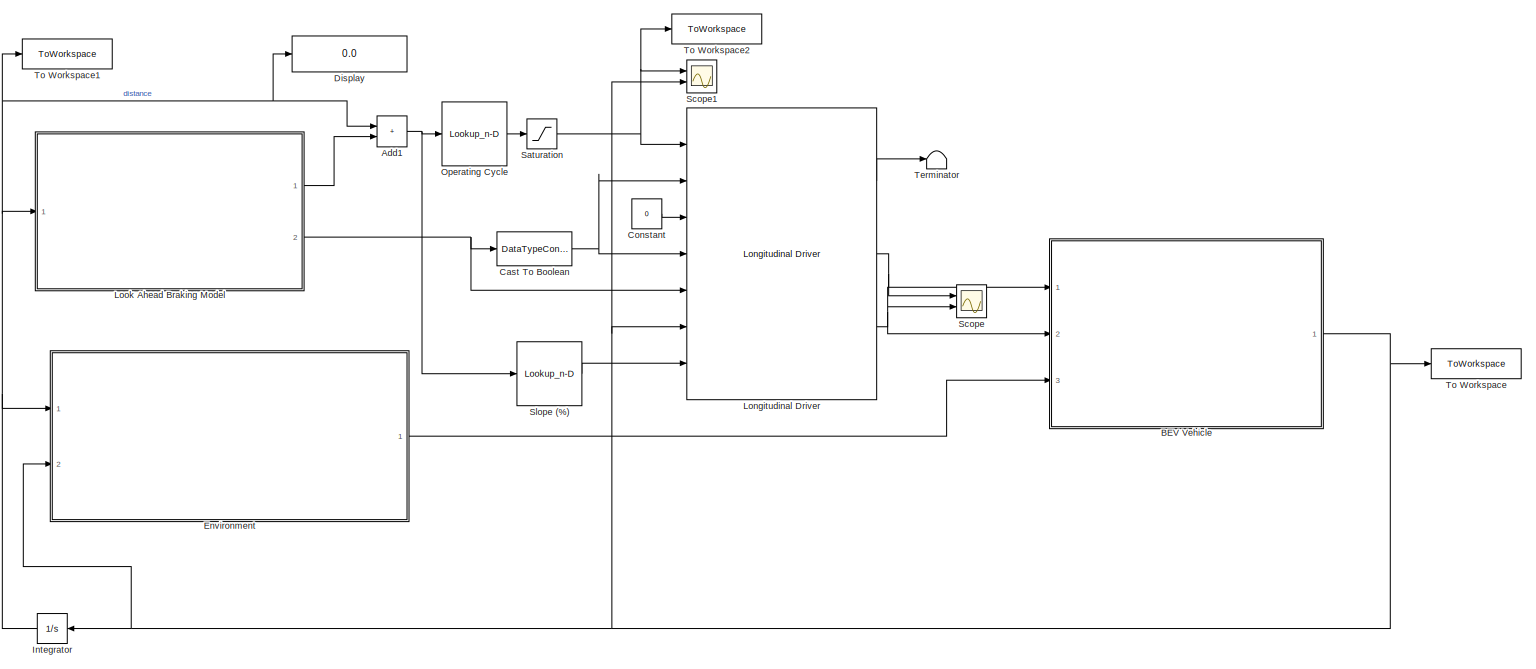
[diagram: root canvas - part 1/1, most of the canvas]
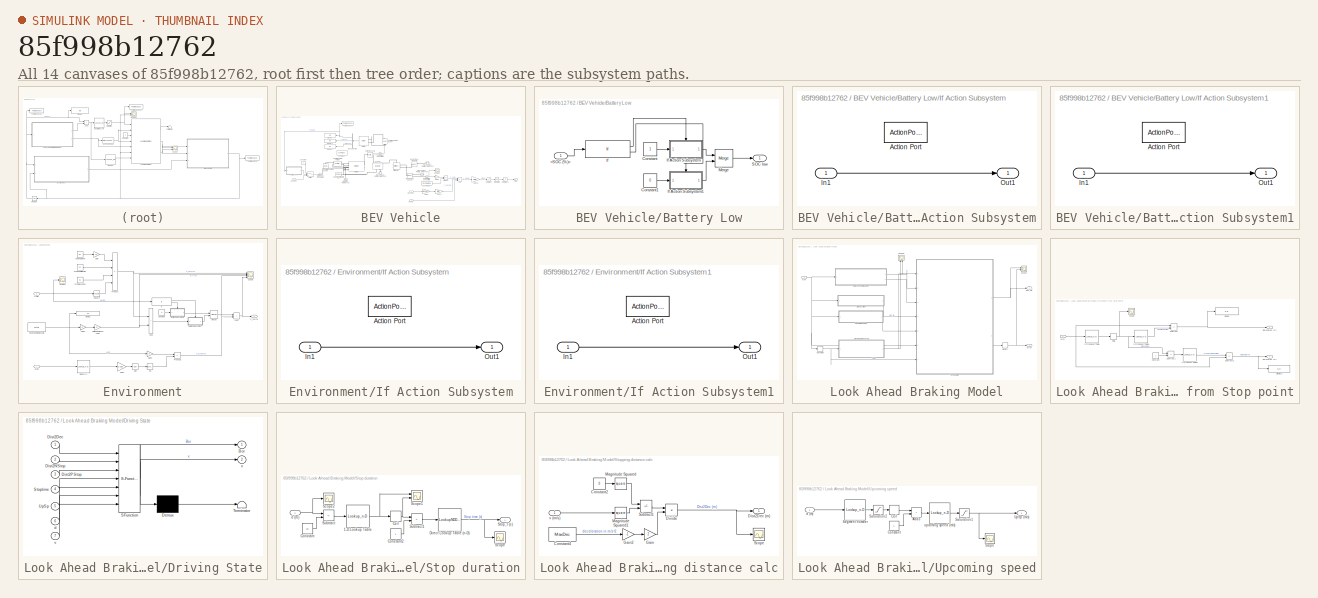
[diagram: thumbnail index - all 14 canvases of the model, root first then tree order]
MODEL slx_85f998b12762
KIND model
CONFIG AbsTol = auto
CONFIG EnableMultiTasking = off
CONFIG FixedStep = auto
CONFIG MaxStep = auto
CONFIG MinStep = auto
CONFIG RelTol = 1e-3
CONFIG SampleTimeConstraint = Unconstrained
CONFIG SolverName = VariableStepAuto
CONFIG StartTime = 0.0
CONFIG StopTime = 16000
BLOCK [Sum] Add1
  IconShape = rectangular
  Ports = [2, 1]
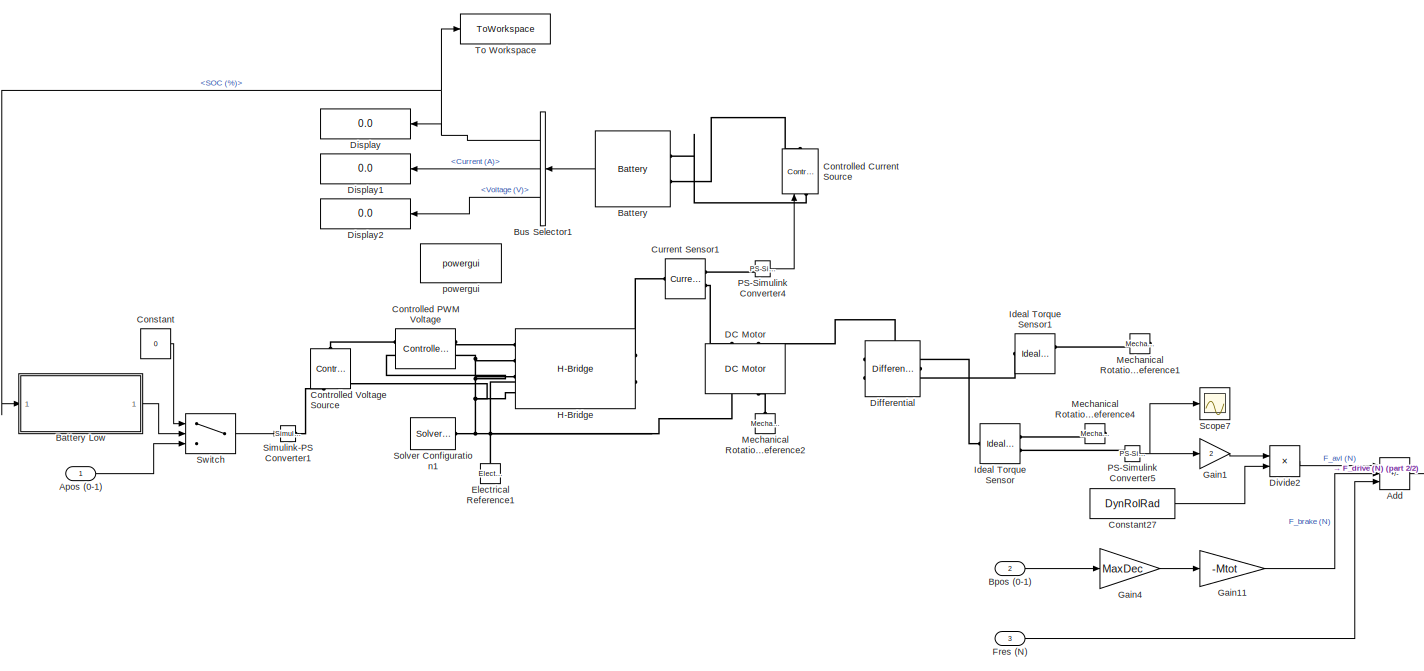
[diagram: BEV Vehicle - part 1/2, most of the canvas]
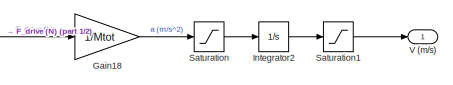
[diagram: BEV Vehicle - part 2/2, bottom right region]
BLOCK [SubSystem] BEV Vehicle
  Ports = [3, 1]
  RequestExecContextInheritance = off
BLOCK [Sum] BEV Vehicle/Add
  IconShape = rectangular
  Inputs = ++-
  Ports = [3, 1]
BLOCK [Inport] BEV Vehicle/Apos (0-1)
BLOCK [Reference] BEV Vehicle/Battery  REF=electricdrivelib/Extra Sources/Battery
  Ports = [0, 1, 0, 0, 0, 2]
  SourceBlock = electricdrivelib/Extra Sources/Battery
  SourceProductBaseCode = PS
  SourceType = Battery
BLOCK [SubSystem] BEV Vehicle/Battery Low
  Ports = [1, 1]
  RequestExecContextInheritance = off
BLOCK [Inport] BEV Vehicle/Battery Low/<SOC (%)>
BLOCK [Constant] BEV Vehicle/Battery Low/Constant
BLOCK [Constant] BEV Vehicle/Battery Low/Constant1
  Value = 0
BLOCK [If] BEV Vehicle/Battery Low/If
  IfExpression = u1 < 1
  Ports = [1, 2]
BLOCK [SubSystem] BEV Vehicle/Battery Low/If Action Subsystem
  Ports = [1, 1, 0, 0, 0, 0, 0, 1]
  RequestExecContextInheritance = off
  TreatAsAtomicUnit = on
BLOCK [ActionPort] BEV Vehicle/Battery Low/If Action Subsystem/Action Port
  ActionPortLabel = if(u1 < 1)
BLOCK [Inport] BEV Vehicle/Battery Low/If Action Subsystem/In1
BLOCK [Outport] BEV Vehicle/Battery Low/If Action Subsystem/Out1
BLOCK [SubSystem] BEV Vehicle/Battery Low/If Action Subsystem1
  Ports = [1, 1, 0, 0, 0, 0, 0, 1]
  RequestExecContextInheritance = off
  TreatAsAtomicUnit = on
BLOCK [ActionPort] BEV Vehicle/Battery Low/If Action Subsystem1/Action Port
  ActionPortLabel = else
BLOCK [Inport] BEV Vehicle/Battery Low/If Action Subsystem1/In1
BLOCK [Outport] BEV Vehicle/Battery Low/If Action Subsystem1/Out1
BLOCK [Merge] BEV Vehicle/Battery Low/Merge
  Ports = [2, 1]
BLOCK [Outport] BEV Vehicle/Battery Low/SOC low
BLOCK [Inport] BEV Vehicle/Bpos (0-1)
  Port = 2
BLOCK [BusSelector] BEV Vehicle/Bus Selector1
  NameLocation = top
  OutputSignals = SOC (%),Current (A),Voltage (V)
  Ports = [1, 3]
BLOCK [Constant] BEV Vehicle/Constant
  Value = 0
BLOCK [Constant] BEV Vehicle/Constant27
  Value = DynRolRad
BLOCK [Reference] BEV Vehicle/Controlled Current Source  REF=powerlib/Electrical
Sources/Controlled Current Source
  NameLocation = right
  Ports = [1, 0, 0, 0, 0, 1, 1]
  SourceBlock = powerlib/Electrical\nSources/Controlled Current Source
  SourceProductBaseCode = PS
  SourceType = Controlled Current Source
BLOCK [Reference] BEV Vehicle/Controlled PWM Voltage  REF=ee_lib/Integrated Circuits/Controlled PWM
Voltage
  Ports = [0, 0, 0, 0, 0, 2, 2]
  SourceBlock = ee_lib/Integrated Circuits/Controlled PWM\nVoltage
  SourceProductBaseCode = PS
  SourceType = Controlled PWM\nVoltage
BLOCK [Reference] BEV Vehicle/Controlled Voltage Source  REF=fl_lib/Electrical/Electrical Sources/Controlled Voltage
Source
  NameLocation = right
  Ports = [0, 0, 0, 0, 0, 1, 2]
  SourceBlock = fl_lib/Electrical/Electrical Sources/Controlled Voltage\nSource
  SourceProductBaseCode = SS
  SourceType = Controlled Voltage\nSource
BLOCK [Reference] BEV Vehicle/Current Sensor1  REF=fl_lib/Electrical/Electrical Sensors/Current Sensor
  Ports = [0, 0, 0, 0, 0, 1, 2]
  SourceBlock = fl_lib/Electrical/Electrical Sensors/Current Sensor
  SourceProductBaseCode = SS
  SourceType = Current Sensor
BLOCK [Reference] BEV Vehicle/DC Motor  REF=ee_lib/Electromechanical/Brushed Motors/DC Motor
  NameLocation = right
  Ports = [0, 0, 0, 0, 0, 2, 2]
  SourceBlock = ee_lib/Electromechanical/Brushed Motors/DC Motor
  SourceProductBaseCode = PS
  SourceType = DC Motor
BLOCK [Reference] BEV Vehicle/Differential  REF=sdl_lib/Gears/Differential
  NameLocation = top
  Ports = [0, 0, 0, 0, 0, 1, 2]
  SourceBlock = sdl_lib/Gears/Differential
  SourceProductBaseCode = LD
  SourceType = Differential
BLOCK [Display] BEV Vehicle/Display
  Decimation = 1
  NameLocation = top
  Ports = [1]
BLOCK [Display] BEV Vehicle/Display1
  Decimation = 1
  NameLocation = top
  Ports = [1]
BLOCK [Display] BEV Vehicle/Display2
  Decimation = 1
  NameLocation = top
  Ports = [1]
BLOCK [Product] BEV Vehicle/Divide2
  Inputs = */
  Ports = [2, 1]
BLOCK [Reference] BEV Vehicle/Electrical Reference1  REF=fl_lib/Electrical/Electrical Elements/Electrical Reference
  NameLocation = right
  Ports = [0, 0, 0, 0, 0, 1]
  SourceBlock = fl_lib/Electrical/Electrical Elements/Electrical Reference
  SourceProductBaseCode = SS
  SourceType = Electrical Reference
BLOCK [Inport] BEV Vehicle/Fres (N)
  Port = 3
BLOCK [Gain] BEV Vehicle/Gain1
  Gain = 2
BLOCK [Gain] BEV Vehicle/Gain11
  Gain = -Mtot
BLOCK [Gain] BEV Vehicle/Gain18
  Gain = 1/Mtot
BLOCK [Gain] BEV Vehicle/Gain4
  Gain = MaxDec
BLOCK [Reference] BEV Vehicle/H-Bridge  REF=ee_lib/Semiconductors &
Converters/Converters/H-Bridge
  Ports = [0, 0, 0, 0, 0, 4, 2]
  SourceBlock = ee_lib/Semiconductors &\nConverters/Converters/H-Bridge
  SourceProductBaseCode = PS
  SourceType = H-Bridge
BLOCK [Reference] BEV Vehicle/Ideal Torque Sensor  REF=fl_lib/Mechanical/Mechanical Sensors/Ideal Torque Sensor
  Ports = [0, 0, 0, 0, 0, 1, 2]
  SourceBlock = fl_lib/Mechanical/Mechanical Sensors/Ideal Torque Sensor
  SourceProductBaseCode = SS
  SourceType = Ideal Torque Sensor
BLOCK [Reference] BEV Vehicle/Ideal Torque Sensor1  REF=fl_lib/Mechanical/Mechanical Sensors/Ideal Torque Sensor
  Ports = [0, 0, 0, 0, 0, 1, 2]
  SourceBlock = fl_lib/Mechanical/Mechanical Sensors/Ideal Torque Sensor
  SourceProductBaseCode = SS
  SourceType = Ideal Torque Sensor
BLOCK [Integrator] BEV Vehicle/Integrator2
  ContinuousStateAttributes = 'acceleration'
  Ports = [1, 1]
BLOCK [Reference] BEV Vehicle/Mechanical Rotational Reference1  REF=fl_lib/Mechanical/Rotational Elements/Mechanical
Rotational Reference
  NameLocation = top
  Ports = [0, 0, 0, 0, 0, 1]
  SourceBlock = fl_lib/Mechanical/Rotational Elements/Mechanical\nRotational Reference
  SourceProductBaseCode = SS
  SourceType = Mechanical\nRotational Reference
BLOCK [Reference] BEV Vehicle/Mechanical Rotational Reference2  REF=fl_lib/Mechanical/Rotational Elements/Mechanical
Rotational Reference
  NameLocation = right
  Ports = [0, 0, 0, 0, 0, 1]
  SourceBlock = fl_lib/Mechanical/Rotational Elements/Mechanical\nRotational Reference
  SourceProductBaseCode = SS
  SourceType = Mechanical\nRotational Reference
BLOCK [Reference] BEV Vehicle/Mechanical Rotational Reference4  REF=fl_lib/Mechanical/Rotational Elements/Mechanical
Rotational Reference
  NameLocation = top
  Ports = [0, 0, 0, 0, 0, 1]
  SourceBlock = fl_lib/Mechanical/Rotational Elements/Mechanical\nRotational Reference
  SourceProductBaseCode = SS
  SourceType = Mechanical\nRotational Reference
BLOCK [Reference] BEV Vehicle/PS-Simulink Converter4  REF=nesl_utility/PS-Simulink
Converter
  Ports = [0, 1, 0, 0, 0, 1]
  SourceBlock = nesl_utility/PS-Simulink\nConverter
  SourceProductBaseCode = PW,SS
  SourceType = PS-Simulink\nConverter
BLOCK [Reference] BEV Vehicle/PS-Simulink Converter5  REF=nesl_utility/PS-Simulink
Converter
  Ports = [0, 1, 0, 0, 0, 1]
  SourceBlock = nesl_utility/PS-Simulink\nConverter
  SourceProductBaseCode = PW,SS
  SourceType = PS-Simulink\nConverter
BLOCK [Saturate] BEV Vehicle/Saturation
  LowerLimit = -(MaxDec)
  UpperLimit = MaxAcc
BLOCK [Saturate] BEV Vehicle/Saturation1
  LowerLimit = 0
  UpperLimit = inf
BLOCK [Scope] BEV Vehicle/Scope7
  Floating = off
  NumInputPorts = 1
  Ports = [1]
  ScopeSpecificationString = Simulink.scopes.TimeScopeBlockCfg('CurrentConfiguration', extmgr.ConfigurationSet(extmgr.Configuration('Core','General UI',true),extmgr.Configuration('Core','Source UI',true),extmgr.Configuration('Sources','WiredSimulink',true,'DataLoggingVariableName','ScopeData2'),extmgr.Configuration('Visuals','Time Domain',true,'SerializedDisplays',{struct('MinYLimReal','-465.97847','MaxYLimReal','4193.80309',...<+1472ch>
BLOCK [Reference] BEV Vehicle/Simulink-PS Converter1  REF=nesl_utility/Simulink-PS
Converter
  Ports = [1, 0, 0, 0, 0, 0, 1]
  SourceBlock = nesl_utility/Simulink-PS\nConverter
  SourceProductBaseCode = PW,SS
  SourceType = Simulink-PS\nConverter
BLOCK [Reference] BEV Vehicle/Solver Configuration1  REF=nesl_utility/Solver
Configuration
  Ports = [0, 0, 0, 0, 0, 0, 1]
  SourceBlock = nesl_utility/Solver\nConfiguration
  SourceProductBaseCode = PW,SS
  SourceType = Solver\nConfiguration
BLOCK [Switch] BEV Vehicle/Switch
  Criteria = u2 > Threshold
  InputSameDT = off
  SaturateOnIntegerOverflow = off
BLOCK [ToWorkspace] BEV Vehicle/To Workspace
  FixptAsFi = on
  MaxDataPoints = inf
  Ports = [1]
  SampleTime = -1
  SaveFormat = Timeseries
  VariableName = SOC
BLOCK [Outport] BEV Vehicle/V (m//s)
BLOCK [Reference] BEV Vehicle/powergui  REF=powerlib/powergui
  Ports = []
  Priority = 1
  SourceBlock = powerlib/powergui
  SourceProductBaseCode = PS
  SourceType = PSB option menu block
BLOCK [DataTypeConversion] Cast To Boolean
  OutDataTypeStr = boolean
  RndMeth = Floor
  SaturateOnIntegerOverflow = off
BLOCK [Constant] Constant
  Value = 0
BLOCK [Display] Display
  Decimation = 1
  Format = long
  Ports = [1]
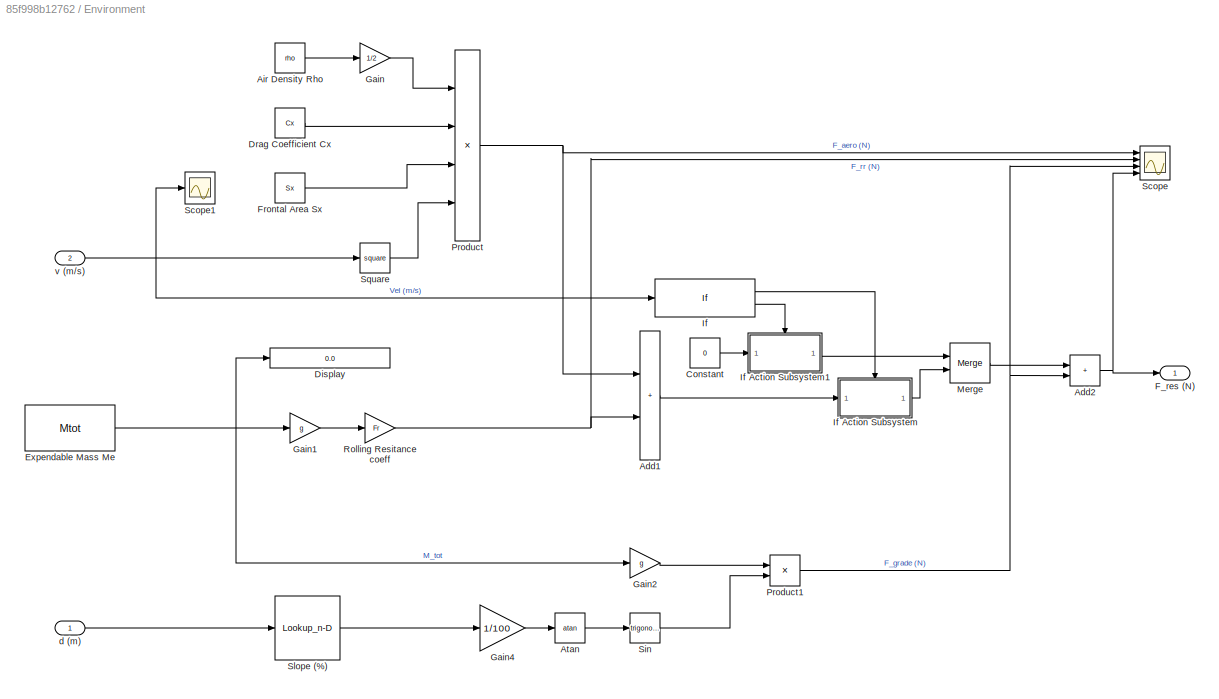
BLOCK [SubSystem] Environment
  Ports = [2, 1]
  RequestExecContextInheritance = off
BLOCK [Sum] Environment/Add1
  IconShape = rectangular
  Ports = [2, 1]
BLOCK [Sum] Environment/Add2
  IconShape = rectangular
  Ports = [2, 1]
BLOCK [Constant] Environment/Air Density Rho
  Value = rho
BLOCK [Trigonometry] Environment/Atan
  Operator = atan
  Ports = [1, 1]
BLOCK [Constant] Environment/Constant
  Value = 0
BLOCK [Display] Environment/Display
  Decimation = 1
  Format = long
  Ports = [1]
BLOCK [Constant] Environment/Drag Coefficient Cx
  Value = Cx
BLOCK [Constant] Environment/Expendable Mass Me
  Value = Mtot
BLOCK [Outport] Environment/F_res (N)
BLOCK [Constant] Environment/Frontal Area Sx
  Value = Sx
BLOCK [Gain] Environment/Gain
  Gain = 1/2
BLOCK [Gain] Environment/Gain1
  Gain = g
BLOCK [Gain] Environment/Gain2
  Gain = g
BLOCK [Gain] Environment/Gain4
  Gain = 1/100
BLOCK [If] Environment/If
  Ports = [1, 2]
BLOCK [SubSystem] Environment/If Action Subsystem
  Ports = [1, 1, 0, 0, 0, 0, 0, 1]
  RequestExecContextInheritance = off
  TreatAsAtomicUnit = on
BLOCK [ActionPort] Environment/If Action Subsystem/Action Port
  ActionPortLabel = if(u1 > 0)
BLOCK [Inport] Environment/If Action Subsystem/In1
BLOCK [Outport] Environment/If Action Subsystem/Out1
BLOCK [SubSystem] Environment/If Action Subsystem1
  Ports = [1, 1, 0, 0, 0, 0, 0, 1]
  RequestExecContextInheritance = off
  TreatAsAtomicUnit = on
BLOCK [ActionPort] Environment/If Action Subsystem1/Action Port
  ActionPortLabel = else
BLOCK [Inport] Environment/If Action Subsystem1/In1
BLOCK [Outport] Environment/If Action Subsystem1/Out1
BLOCK [Merge] Environment/Merge
  Ports = [2, 1]
BLOCK [Product] Environment/Product
  Inputs = 4
  Ports = [4, 1]
BLOCK [Product] Environment/Product1
  Ports = [2, 1]
BLOCK [Gain] Environment/Rolling Resitance coeff
  Gain = Fr
BLOCK [Scope] Environment/Scope
  Floating = off
  NumInputPorts = 4
  Ports = [4]
  ScopeSpecificationString = Simulink.scopes.TimeScopeBlockCfg('CurrentConfiguration', extmgr.ConfigurationSet(extmgr.Configuration('Core','General UI',true),extmgr.Configuration('Core','Source UI',true),extmgr.Configuration('Sources','WiredSimulink',true,'DataLoggingVariableName','ScopeData16'),extmgr.Configuration('Visuals','Time Domain',true,'SerializedDisplays',{struct('MinYLimReal','-30512.50148','MaxYLimReal','34655.546...<+1620ch>
BLOCK [Scope] Environment/Scope1
  Floating = off
  NumInputPorts = 1
  Ports = [1]
  ScopeSpecificationString = Simulink.scopes.TimeScopeBlockCfg('CurrentConfiguration', extmgr.ConfigurationSet(extmgr.Configuration('Core','General UI',true),extmgr.Configuration('Core','Source UI',true),extmgr.Configuration('Sources','WiredSimulink',true,'DataLoggingVariableName','ScopeData10'),extmgr.Configuration('Visuals','Time Domain',true,'SerializedDisplays',{struct('MinYLimReal','-1.15217','MaxYLimReal','10.36951','YL...<+1417ch>
BLOCK [Trigonometry] Environment/Sin
  Ports = [1, 1]
BLOCK [Lookup_n-D] Environment/Slope (%)
  BreakpointsForDimension1 = Dist
  InputPortMap = u0
  InternalRulePriority = Speed
  NumberOfTableDimensions = 1
  Ports = [1, 1]
  RndMeth = Simplest
  Table = IntpSlope
BLOCK [Math] Environment/Square
  Operator = square
  Ports = [1, 1]
BLOCK [Inport] Environment/d (m)
BLOCK [Inport] Environment/v (m//s)
  Port = 2
BLOCK [Integrator] Integrator
  NameLocation = top
  Ports = [1, 1]
BLOCK [Reference] Longitudinal Driver  REF=autolibshared/Longitudinal Driver
  Ports = [7, 3]
  SourceBlock = autolibshared/Longitudinal Driver
  SourceProductBaseCode = PW,DR,MT,UV,VE
  SourceType = Longitudinal Driver
BLOCK [SubSystem] Look Ahead Braking Model
  Ports = [1, 2]
  RequestExecContextInheritance = off
BLOCK [Outport] Look Ahead Braking Model/Dec_OR
  Port = 2
BLOCK [Derivative] Look Ahead Braking Model/Derivative
BLOCK [SubSystem] Look Ahead Braking Model/Distance from Stop point
  Ports = [1, 2]
  RequestExecContextInheritance = off
BLOCK [Lookup_n-D] Look Ahead Braking Model/Distance from Stop point/1-D Lookup Table
  BreakpointsForDimension1 = Stoptimes(:,1)
  InputPortMap = u0
  InternalRulePriority = Speed
  NumberOfTableDimensions = 1
  Ports = [1, 1]
  RndMeth = Simplest
  Table = 1:length(Stoptimes(:,1))
BLOCK [Lookup_n-D] Look Ahead Braking Model/Distance from Stop point/1-D Lookup Table1
  BreakpointsForDimension1 = 1:length(Stoptimes(:,1))
  InputPortMap = u0
  InternalRulePriority = Speed
  NumberOfTableDimensions = 1
  Ports = [1, 1]
  RndMeth = Simplest
  Table = Stoptimes(:,1)
BLOCK [Lookup_n-D] Look Ahead Braking Model/Distance from Stop point/1-D Lookup Table2
  BreakpointsForDimension1 = 1:length(Stoptimes(:,1))
  InputPortMap = u0
  InternalRulePriority = Speed
  NumberOfTableDimensions = 1
  Ports = [1, 1]
  RndMeth = Simplest
  Table = Stoptimes(:,1)
BLOCK [Rounding] Look Ahead Braking Model/Distance from Stop point/Ceil1
  Operator = ceil
BLOCK [Constant] Look Ahead Braking Model/Distance from Stop point/Constant
BLOCK [Display] Look Ahead Braking Model/Distance from Stop point/Display
  Decimation = 1
  Format = long
  Ports = [1]
BLOCK [Display] Look Ahead Braking Model/Distance from Stop point/Display1
  Decimation = 1
  Format = long
  Ports = [1]
BLOCK [Outport] Look Ahead Braking Model/Distance from Stop point/Dist2NStop (m)
BLOCK [Outport] Look Ahead Braking Model/Distance from Stop point/Dist2PStop (m)
  Port = 2
BLOCK [Scope] Look Ahead Braking Model/Distance from Stop point/Scope
  Floating = off
  NumInputPorts = 1
  Ports = [1]
  ScopeSpecificationString = Simulink.scopes.TimeScopeBlockCfg('CurrentConfiguration', extmgr.ConfigurationSet(extmgr.Configuration('Core','General UI',true),extmgr.Configuration('Core','Source UI',true),extmgr.Configuration('Sources','WiredSimulink',true,'DataLoggingVariableName','ScopeData1'),extmgr.Configuration('Visuals','Time Domain',true,'SerializedDisplays',{struct('MinYLimReal','0.875','MaxYLimReal','2.125','YLabelRea...<+1352ch>
BLOCK [Sum] Look Ahead Braking Model/Distance from Stop point/Subtract
  IconShape = rectangular
  Inputs = -+
  Ports = [2, 1]
BLOCK [Sum] Look Ahead Braking Model/Distance from Stop point/Subtract1
  IconShape = rectangular
  Inputs = +-
  Ports = [2, 1]
BLOCK [Sum] Look Ahead Braking Model/Distance from Stop point/Subtract2
  IconShape = rectangular
  Inputs = +-
  Ports = [2, 1]
BLOCK [Inport] Look Ahead Braking Model/Distance from Stop point/d(m)
BLOCK [SubSystem] Look Ahead Braking Model/Driving State
  ErrorFcn = Stateflow.Translate.translate
  PermitHierarchicalResolution = ExplicitOnly
  PortSchema = {"entries":[{"content":{"sides":[{"content":{"connectorIds":["In2","In3","In4","In5","In6","In1","In7"]},"type":"ConnectorPlacement.EquallySpacedRectSide","uuid":"d2ffa8ce-717b-462a-89f0-d2e290a1049a"},{"content":{"connectorIds":["Out1","Out2"],"side":"RIGHT"},"type":"ConnectorPlacement.EquallySpacedRectSide","uuid":"23dd838e-bde8-43eb-b85c-28483cc72b3d"},{"content":{"connectorIds":[],"side":"TOP"...<+427ch>
  Ports = [7, 2]
  RequestExecContextInheritance = off
  SFBlockType = Chart
  TreatAsAtomicUnit = on
BLOCK [Demux] Look Ahead Braking Model/Driving State/ Demux 
  Outputs = 1
  Ports = [1, 1]
BLOCK [S-Function] Look Ahead Braking Model/Driving State/ SFunction 
  EnableBusSupport = on
  FunctionName = sf_sfun
  PortCounts = [7 3]
  Ports = [7, 3]
  SFcnIsStateOwnerBlock = off
  SFunctionDeploymentMode = off
  Tag = Stateflow S-Function 3
BLOCK [Terminator] Look Ahead Braking Model/Driving State/ Terminator 
BLOCK [Outport] Look Ahead Braking Model/Driving State/Bor
BLOCK [Inport] Look Ahead Braking Model/Driving State/Dist2Dec
BLOCK [Inport] Look Ahead Braking Model/Driving State/Dist2NStop
  Port = 2
BLOCK [Inport] Look Ahead Braking Model/Driving State/Dist2PStop
  Port = 3
BLOCK [Inport] Look Ahead Braking Model/Driving State/Stoptime
  Port = 4
BLOCK [Inport] Look Ahead Braking Model/Driving State/UpSp
  Port = 5
BLOCK [Inport] Look Ahead Braking Model/Driving State/d
  Port = 6
BLOCK [Inport] Look Ahead Braking Model/Driving State/v
  Port = 7
BLOCK [Outport] Look Ahead Braking Model/Driving State/x
  Port = 2
BLOCK [Memory] Look Ahead Braking Model/Memory
BLOCK [Scope] Look Ahead Braking Model/Scope4
  Floating = off
  NumInputPorts = 2
  Ports = [2]
  ScopeSpecificationString = Simulink.scopes.TimeScopeBlockCfg('CurrentConfiguration', extmgr.ConfigurationSet(extmgr.Configuration('Core','General UI',true),extmgr.Configuration('Core','Source UI',true),extmgr.Configuration('Sources','WiredSimulink',true,'DataLoggingVariableName','ScopeData1'),extmgr.Configuration('Visuals','Time Domain',true,'SerializedDisplays',{struct('MinYLimReal','-1.00000','MaxYLimReal','1.00000','YLab...<+1480ch>
BLOCK [Scope] Look Ahead Braking Model/Scope6
  Floating = off
  NameLocation = right
  NumInputPorts = 2
  Ports = [2]
  ScopeSpecificationString = Simulink.scopes.TimeScopeBlockCfg('CurrentConfiguration', extmgr.ConfigurationSet(extmgr.Configuration('Core','General UI',true),extmgr.Configuration('Core','Source UI',true),extmgr.Configuration('Sources','WiredSimulink',true,'DataLoggingVariableName','ScopeData1'),extmgr.Configuration('Visuals','Time Domain',true,'SerializedDisplays',{struct('MinYLimReal','-168.51924','MaxYLimReal','1516.67314',...<+1455ch>
BLOCK [SubSystem] Look Ahead Braking Model/Stop duration
  Ports = [1, 1]
  RequestExecContextInheritance = off
BLOCK [Lookup_n-D] Look Ahead Braking Model/Stop duration/1-D Lookup Table
  BreakpointsForDimension1 = Stoptimes(:,1)
  InputPortMap = u0
  InternalRulePriority = Speed
  NumberOfTableDimensions = 1
  Ports = [1, 1]
  RndMeth = Simplest
  Table = 1:length(Stoptimes(:,1))
BLOCK [Rounding] Look Ahead Braking Model/Stop duration/Ceil
  Operator = ceil
BLOCK [Constant] Look Ahead Braking Model/Stop duration/Constant
  Value = 10
BLOCK [Constant] Look Ahead Braking Model/Stop duration/Constant2
BLOCK [LookupNDDirect] Look Ahead Braking Model/Stop duration/Direct Lookup Table (n-D)
  NumberOfTableDimensions = 1
  Ports = [1, 1]
  Table = Stoptimes(:,2)
BLOCK [Scope] Look Ahead Braking Model/Stop duration/Scope
  Floating = off
  NumInputPorts = 1
  Ports = [1]
  ScopeSpecificationString = Simulink.scopes.TimeScopeBlockCfg('CurrentConfiguration', extmgr.ConfigurationSet(extmgr.Configuration('Core','General UI',true),extmgr.Configuration('Core','Source UI',true),extmgr.Configuration('Sources','WiredSimulink',true,'DataLoggingVariableName','ScopeData1'),extmgr.Configuration('Visuals','Time Domain',true,'SerializedDisplays',{struct('MinYLimReal','48.00000','MaxYLimReal','68.00000','YLa...<+1431ch>
BLOCK [Scope] Look Ahead Braking Model/Stop duration/Scope1
  Floating = off
  NumInputPorts = 2
  Ports = [2]
  ScopeSpecificationString = Simulink.scopes.TimeScopeBlockCfg('CurrentConfiguration', extmgr.ConfigurationSet(extmgr.Configuration('Core','General UI',true),extmgr.Configuration('Core','Source UI',true),extmgr.Configuration('Sources','WiredSimulink',true,'DataLoggingVariableName','ScopeData3'),extmgr.Configuration('Visuals','Time Domain',true,'SerializedDisplays',{struct('MinYLimReal','-0.3839','MaxYLimReal','6.70932','YLabe...<+1434ch>
BLOCK [Scope] Look Ahead Braking Model/Stop duration/Scope2
  Floating = off
  NumInputPorts = 1
  Ports = [1]
  ScopeSpecificationString = Simulink.scopes.TimeScopeBlockCfg('CurrentConfiguration', extmgr.ConfigurationSet(extmgr.Configuration('Core','General UI',true),extmgr.Configuration('Core','Source UI',true),extmgr.Configuration('Sources','WiredSimulink',true,'DataLoggingVariableName','ScopeData4'),extmgr.Configuration('Visuals','Time Domain',true,'SerializedDisplays',{struct('MinYLimReal','-13527.45895','MaxYLimReal','121747.130...<+1453ch>
BLOCK [Outport] Look Ahead Braking Model/Stop duration/Stop_t (s)
BLOCK [Sum] Look Ahead Braking Model/Stop duration/Subtract
  IconShape = rectangular
  Inputs = +-
  Ports = [2, 1]
BLOCK [Sum] Look Ahead Braking Model/Stop duration/Subtract1
  IconShape = rectangular
  Inputs = +-
  Ports = [2, 1]
BLOCK [Inport] Look Ahead Braking Model/Stop duration/d (m)
BLOCK [SubSystem] Look Ahead Braking Model/Stopping distance calc
  Ports = [1, 1]
  RequestExecContextInheritance = off
BLOCK [Constant] Look Ahead Braking Model/Stopping distance calc/Constant2
  Value = 0
BLOCK [Constant] Look Ahead Braking Model/Stopping distance calc/Constant4
  Value = MaxDec
BLOCK [Outport] Look Ahead Braking Model/Stopping distance calc/Dist2Dec (m)
BLOCK [Product] Look Ahead Braking Model/Stopping distance calc/Divide
  Inputs = */
  Ports = [2, 1]
BLOCK [Gain] Look Ahead Braking Model/Stopping distance calc/Gain
  Gain = 2
BLOCK [Gain] Look Ahead Braking Model/Stopping distance calc/Gain2
  Gain = -1
BLOCK [Math] Look Ahead Braking Model/Stopping distance calc/Magnitude Squared
  Operator = square
  Ports = [1, 1]
BLOCK [Math] Look Ahead Braking Model/Stopping distance calc/Magnitude Squared1
  Operator = square
  Ports = [1, 1]
BLOCK [Scope] Look Ahead Braking Model/Stopping distance calc/Scope
  Floating = off
  NumInputPorts = 1
  Ports = [1]
  ScopeSpecificationString = Simulink.scopes.TimeScopeBlockCfg('CurrentConfiguration', extmgr.ConfigurationSet(extmgr.Configuration('Core','General UI',true),extmgr.Configuration('Core','Source UI',true),extmgr.Configuration('Sources','WiredSimulink',true,'DataLoggingVariableName','ScopeData5'),extmgr.Configuration('Visuals','Time Domain',true,'SerializedDisplays',{struct('MinYLimReal','-18.21832','MaxYLimReal','163.9649','YL...<+1429ch>
BLOCK [Sum] Look Ahead Braking Model/Stopping distance calc/Subtract1
  IconShape = rectangular
  Inputs = +-
  Ports = [2, 1]
BLOCK [Inport] Look Ahead Braking Model/Stopping distance calc/v (m//s)
BLOCK [SubSystem] Look Ahead Braking Model/Upcoming speed
  Ports = [1, 1]
  RequestExecContextInheritance = off
BLOCK [Sum] Look Ahead Braking Model/Upcoming speed/Add3
  IconShape = rectangular
  Ports = [2, 1]
BLOCK [Rounding] Look Ahead Braking Model/Upcoming speed/Ceil
  Operator = ceil
BLOCK [Constant] Look Ahead Braking Model/Upcoming speed/Constant
BLOCK [Saturate] Look Ahead Braking Model/Upcoming speed/Saturation1
  LowerLimit = 0
  UpperLimit = inf
BLOCK [Saturate] Look Ahead Braking Model/Upcoming speed/Saturation2
  LowerLimit = 0
  UpperLimit = inf
BLOCK [Scope] Look Ahead Braking Model/Upcoming speed/Scope
  Floating = off
  NumInputPorts = 1
  Ports = [1]
  ScopeSpecificationString = Simulink.scopes.TimeScopeBlockCfg('CurrentConfiguration', extmgr.ConfigurationSet(extmgr.Configuration('Core','General UI',true),extmgr.Configuration('Core','Source UI',true),extmgr.Configuration('Sources','WiredSimulink',true,'DataLoggingVariableName','ScopeData7'),extmgr.Configuration('Visuals','Time Domain',true,'SerializedDisplays',{struct('MinYLimReal','-2.95139','MaxYLimReal','26.5625','YLab...<+1397ch>
BLOCK [Lookup_n-D] Look Ahead Braking Model/Upcoming speed/Segment number
  BreakpointsForDimension1 = CovDist
  BreakpointsForDimension2 = G1Inprpm
  InputPortMap = u0
  InternalRulePriority = Speed
  InterpMethod = Linear Lagrange
  NumberOfTableDimensions = 1
  Ports = [1, 1]
  RndMeth = Simplest
  Table = SegNo
BLOCK [Outport] Look Ahead Braking Model/Upcoming speed/UpSp (m//s)
BLOCK [Inport] Look Ahead Braking Model/Upcoming speed/d (m)
BLOCK [Lookup_n-D] Look Ahead Braking Model/Upcoming speed/upcoming speed (m//s)
  BreakpointsForDimension1 = SegNo
  BreakpointsForDimension2 = G1Inprpm
  InputPortMap = u0
  InternalRulePriority = Speed
  InterpMethod = Linear Lagrange
  NumberOfTableDimensions = 1
  Ports = [1, 1]
  RndMeth = Simplest
  Table = SegSPLatinmps
BLOCK [Inport] Look Ahead Braking Model/d (m)
BLOCK [Outport] Look Ahead Braking Model/error
BLOCK [Lookup_n-D] Operating Cycle
  BreakpointsForDimension1 = Dist
  BreakpointsForDimension2 = G1Inprpm
  InputPortMap = u0
  InternalRulePriority = Speed
  InterpMethod = Linear Lagrange
  NumberOfTableDimensions = 1
  Ports = [1, 1]
  RndMeth = Simplest
  Table = MaxSpeedProfile
BLOCK [Saturate] Saturation
  LowerLimit = 0
  UpperLimit = inf
BLOCK [Scope] Scope
  Floating = off
  NumInputPorts = 2
  Ports = [2]
  ScopeSpecificationString = Simulink.scopes.TimeScopeBlockCfg('CurrentConfiguration', extmgr.ConfigurationSet(extmgr.Configuration('Core','General UI',true),extmgr.Configuration('Core','Source UI',true),extmgr.Configuration('Sources','WiredSimulink',true,'DataLoggingVariableName','ScopeData1'),extmgr.Configuration('Visuals','Time Domain',true,'SerializedDisplays',{struct('MinYLimReal','-0.125','MaxYLimReal','1.125','YLabelRe...<+1398ch>
BLOCK [Scope] Scope1
  Floating = off
  NumInputPorts = 2
  Ports = [2]
  ScopeSpecificationString = Simulink.scopes.TimeScopeBlockCfg('CurrentConfiguration', extmgr.ConfigurationSet(extmgr.Configuration('Core','General UI',true),extmgr.Configuration('Core','Source UI',true),extmgr.Configuration('Sources','WiredSimulink',true,'DataLoggingVariableName','ScopeData1'),extmgr.Configuration('Visuals','Time Domain',true,'SerializedDisplays',{struct('MinYLimReal','-3.00503','MaxYLimReal','27.04531','YLa...<+1501ch>
BLOCK [Lookup_n-D] Slope (%)
  BreakpointsForDimension1 = Dist
  InputPortMap = u0
  InternalRulePriority = Speed
  NumberOfTableDimensions = 1
  Ports = [1, 1]
  RndMeth = Simplest
  Table = IntpSlope
BLOCK [Terminator] Terminator
BLOCK [ToWorkspace] To Workspace
  FixptAsFi = on
  MaxDataPoints = inf
  Ports = [1]
  SampleTime = -1
  SaveFormat = Timeseries
  VariableName = vel
BLOCK [ToWorkspace] To Workspace1
  FixptAsFi = on
  MaxDataPoints = inf
  Ports = [1]
  SampleTime = -1
  SaveFormat = Timeseries
  VariableName = dist
BLOCK [ToWorkspace] To Workspace2
  FixptAsFi = on
  MaxDataPoints = inf
  Ports = [1]
  SampleTime = -1
  SaveFormat = Timeseries
  VariableName = targ
NET Add1:1 -> Operating Cycle:1, Slope (%):1
LINE BEV Vehicle/Add:1 -> BEV Vehicle/Gain18:1
LINE BEV Vehicle/Apos (0-1):1 -> BEV Vehicle/Switch:3
LINE BEV Vehicle/Battery Low/<SOC (%)>:1 -> BEV Vehicle/Battery Low/If:1
LINE BEV Vehicle/Battery Low/Constant1:1 -> BEV Vehicle/Battery Low/If Action Subsystem1:1
LINE BEV Vehicle/Battery Low/Constant:1 -> BEV Vehicle/Battery Low/If Action Subsystem:1
LINE BEV Vehicle/Battery Low/If Action Subsystem/In1:1 -> BEV Vehicle/Battery Low/If Action Subsystem/Out1:1
LINE BEV Vehicle/Battery Low/If Action Subsystem1/In1:1 -> BEV Vehicle/Battery Low/If Action Subsystem1/Out1:1
LINE BEV Vehicle/Battery Low/If Action Subsystem1:1 -> BEV Vehicle/Battery Low/Merge:2
LINE BEV Vehicle/Battery Low/If Action Subsystem:1 -> BEV Vehicle/Battery Low/Merge:1
LINE BEV Vehicle/Battery Low/If:1 -> BEV Vehicle/Battery Low/If Action Subsystem:ifaction
LINE BEV Vehicle/Battery Low/If:2 -> BEV Vehicle/Battery Low/If Action Subsystem1:ifaction
LINE BEV Vehicle/Battery Low/Merge:1 -> BEV Vehicle/Battery Low/SOC low:1
LINE BEV Vehicle/Battery Low:1 -> BEV Vehicle/Switch:2
LINE BEV Vehicle/Battery:1 -> BEV Vehicle/Bus Selector1:1
LINE BEV Vehicle/Bpos (0-1):1 -> BEV Vehicle/Gain4:1
NET BEV Vehicle/Bus Selector1:1 -> BEV Vehicle/Battery Low:1, BEV Vehicle/Display:1, BEV Vehicle/To Workspace:1
LINE BEV Vehicle/Bus Selector1:2 -> BEV Vehicle/Display1:1
LINE BEV Vehicle/Bus Selector1:3 -> BEV Vehicle/Display2:1
LINE BEV Vehicle/Constant27:1 -> BEV Vehicle/Divide2:2
LINE BEV Vehicle/Constant:1 -> BEV Vehicle/Switch:1
LINE BEV Vehicle/Divide2:1 -> BEV Vehicle/Add:1
LINE BEV Vehicle/Fres (N):1 -> BEV Vehicle/Add:3
LINE BEV Vehicle/Gain11:1 -> BEV Vehicle/Add:2
LINE BEV Vehicle/Gain18:1 -> BEV Vehicle/Saturation:1
LINE BEV Vehicle/Gain1:1 -> BEV Vehicle/Divide2:1
LINE BEV Vehicle/Gain4:1 -> BEV Vehicle/Gain11:1
LINE BEV Vehicle/Integrator2:1 -> BEV Vehicle/Saturation1:1
LINE BEV Vehicle/PS-Simulink Converter4:1 -> BEV Vehicle/Controlled Current Source:1
NET BEV Vehicle/PS-Simulink Converter5:1 -> BEV Vehicle/Gain1:1, BEV Vehicle/Scope7:1
LINE BEV Vehicle/Saturation1:1 -> BEV Vehicle/V (m//s):1
LINE BEV Vehicle/Saturation:1 -> BEV Vehicle/Integrator2:1
LINE BEV Vehicle/Switch:1 -> BEV Vehicle/Simulink-PS Converter1:1
NET BEV Vehicle:1 -> Environment:2, Integrator:1, Longitudinal Driver:6, Scope1:2, To Workspace:1
NET Cast To Boolean:1 -> Longitudinal Driver:2, Longitudinal Driver:4
LINE Constant:1 -> Longitudinal Driver:3
LINE Environment/Add1:1 -> Environment/If Action Subsystem:1
NET Environment/Add2:1 -> Environment/F_res (N):1, Environment/Scope:4
LINE Environment/Air Density Rho:1 -> Environment/Gain:1
LINE Environment/Atan:1 -> Environment/Sin:1
LINE Environment/Constant:1 -> Environment/If Action Subsystem1:1
LINE Environment/Drag Coefficient Cx:1 -> Environment/Product:2
NET Environment/Expendable Mass Me:1 -> Environment/Display:1, Environment/Gain1:1, Environment/Gain2:1
LINE Environment/Frontal Area Sx:1 -> Environment/Product:3
LINE Environment/Gain1:1 -> Environment/Rolling Resitance coeff:1
LINE Environment/Gain2:1 -> Environment/Product1:1
LINE Environment/Gain4:1 -> Environment/Atan:1
LINE Environment/Gain:1 -> Environment/Product:1
LINE Environment/If Action Subsystem/In1:1 -> Environment/If Action Subsystem/Out1:1
LINE Environment/If Action Subsystem1/In1:1 -> Environment/If Action Subsystem1/Out1:1
LINE Environment/If Action Subsystem1:1 -> Environment/Merge:1
LINE Environment/If Action Subsystem:1 -> Environment/Merge:2
LINE Environment/If:1 -> Environment/If Action Subsystem:ifaction
LINE Environment/If:2 -> Environment/If Action Subsystem1:ifaction
LINE Environment/Merge:1 -> Environment/Add2:1
NET Environment/Product1:1 -> Environment/Add2:2, Environment/Scope:3
NET Environment/Product:1 -> Environment/Add1:1, Environment/Scope:1
NET Environment/Rolling Resitance coeff:1 -> Environment/Add1:2, Environment/Scope:2
LINE Environment/Sin:1 -> Environment/Product1:2
LINE Environment/Slope (%):1 -> Environment/Gain4:1
LINE Environment/Square:1 -> Environment/Product:4
LINE Environment/d (m):1 -> Environment/Slope (%):1
NET Environment/v (m//s):1 -> Environment/If:1, Environment/Scope1:1, Environment/Square:1
LINE Environment:1 -> BEV Vehicle:3
NET Integrator:1 -> Add1:1, Display:1, Environment:1, Look Ahead Braking Model:1, To Workspace1:1
LINE Longitudinal Driver:1 -> Terminator:1
NET Longitudinal Driver:2 -> BEV Vehicle:1, Scope:1
NET Longitudinal Driver:3 -> BEV Vehicle:2, Scope:2
NET Look Ahead Braking Model/Derivative:1 -> Look Ahead Braking Model/Driving State:7, Look Ahead Braking Model/Stopping distance calc:1
LINE Look Ahead Braking Model/Distance from Stop point/1-D Lookup Table1:1 -> Look Ahead Braking Model/Distance from Stop point/Subtract:2
LINE Look Ahead Braking Model/Distance from Stop point/1-D Lookup Table2:1 -> Look Ahead Braking Model/Distance from Stop point/Subtract2:1
LINE Look Ahead Braking Model/Distance from Stop point/1-D Lookup Table:1 -> Look Ahead Braking Model/Distance from Stop point/Ceil1:1
NET Look Ahead Braking Model/Distance from Stop point/Ceil1:1 -> Look Ahead Braking Model/Distance from Stop point/1-D Lookup Table1:1, Look Ahead Braking Model/Distance from Stop point/Scope:1, Look Ahead Braking Model/Distance from Stop point/Subtract1:1
LINE Look Ahead Braking Model/Distance from Stop point/Constant:1 -> Look Ahead Braking Model/Distance from Stop point/Subtract1:2
LINE Look Ahead Braking Model/Distance from Stop point/Subtract1:1 -> Look Ahead Braking Model/Distance from Stop point/1-D Lookup Table2:1
NET Look Ahead Braking Model/Distance from Stop point/Subtract2:1 -> Look Ahead Braking Model/Distance from Stop point/Display1:1, Look Ahead Braking Model/Distance from Stop point/Dist2PStop (m):1
NET Look Ahead Braking Model/Distance from Stop point/Subtract:1 -> Look Ahead Braking Model/Distance from Stop point/Display:1, Look Ahead Braking Model/Distance from Stop point/Dist2NStop (m):1
NET Look Ahead Braking Model/Distance from Stop point/d(m):1 -> Look Ahead Braking Model/Distance from Stop point/1-D Lookup Table:1, Look Ahead Braking Model/Distance from Stop point/Subtract2:2, Look Ahead Braking Model/Distance from Stop point/Subtract:1
NET Look Ahead Braking Model/Distance from Stop point:1 -> Look Ahead Braking Model/Driving State:2, Look Ahead Braking Model/Scope6:2
LINE Look Ahead Braking Model/Distance from Stop point:2 -> Look Ahead Braking Model/Driving State:3
NET Look Ahead Braking Model/Driving State:1 -> Look Ahead Braking Model/Dec_OR:1, Look Ahead Braking Model/Scope4:1
LINE Look Ahead Braking Model/Driving State:2 -> Look Ahead Braking Model/Memory:1
NET Look Ahead Braking Model/Memory:1 -> Look Ahead Braking Model/Scope4:2, Look Ahead Braking Model/error:1
NET Look Ahead Braking Model/Stop duration/1-D Lookup Table:1 -> Look Ahead Braking Model/Stop duration/Ceil:1, Look Ahead Braking Model/Stop duration/Scope1:1
NET Look Ahead Braking Model/Stop duration/Ceil:1 -> Look Ahead Braking Model/Stop duration/Scope1:2, Look Ahead Braking Model/Stop duration/Subtract1:1
LINE Look Ahead Braking Model/Stop duration/Constant2:1 -> Look Ahead Braking Model/Stop duration/Subtract1:2
LINE Look Ahead Braking Model/Stop duration/Constant:1 -> Look Ahead Braking Model/Stop duration/Subtract:2
NET Look Ahead Braking Model/Stop duration/Direct Lookup Table (n-D):1 -> Look Ahead Braking Model/Stop duration/Scope:1, Look Ahead Braking Model/Stop duration/Stop_t (s):1
LINE Look Ahead Braking Model/Stop duration/Subtract1:1 -> Look Ahead Braking Model/Stop duration/Direct Lookup Table (n-D):1
LINE Look Ahead Braking Model/Stop duration/Subtract:1 -> Look Ahead Braking Model/Stop duration/1-D Lookup Table:1
NET Look Ahead Braking Model/Stop duration/d (m):1 -> Look Ahead Braking Model/Stop duration/Scope2:1, Look Ahead Braking Model/Stop duration/Subtract:1
LINE Look Ahead Braking Model/Stop duration:1 -> Look Ahead Braking Model/Driving State:4
LINE Look Ahead Braking Model/Stopping distance calc/Constant2:1 -> Look Ahead Braking Model/Stopping distance calc/Magnitude Squared:1
LINE Look Ahead Braking Model/Stopping distance calc/Constant4:1 -> Look Ahead Braking Model/Stopping distance calc/Gain2:1
NET Look Ahead Braking Model/Stopping distance calc/Divide:1 -> Look Ahead Braking Model/Stopping distance calc/Dist2Dec (m):1, Look Ahead Braking Model/Stopping distance calc/Scope:1
LINE Look Ahead Braking Model/Stopping distance calc/Gain2:1 -> Look Ahead Braking Model/Stopping distance calc/Gain:1
LINE Look Ahead Braking Model/Stopping distance calc/Gain:1 -> Look Ahead Braking Model/Stopping distance calc/Divide:2
LINE Look Ahead Braking Model/Stopping distance calc/Magnitude Squared1:1 -> Look Ahead Braking Model/Stopping distance calc/Subtract1:2
LINE Look Ahead Braking Model/Stopping distance calc/Magnitude Squared:1 -> Look Ahead Braking Model/Stopping distance calc/Subtract1:1
LINE Look Ahead Braking Model/Stopping distance calc/Subtract1:1 -> Look Ahead Braking Model/Stopping distance calc/Divide:1
LINE Look Ahead Braking Model/Stopping distance calc/v (m//s):1 -> Look Ahead Braking Model/Stopping distance calc/Magnitude Squared1:1
NET Look Ahead Braking Model/Stopping distance calc:1 -> Look Ahead Braking Model/Driving State:1, Look Ahead Braking Model/Scope6:1
LINE Look Ahead Braking Model/Upcoming speed/Add3:1 -> Look Ahead Braking Model/Upcoming speed/upcoming speed (m//s):1
LINE Look Ahead Braking Model/Upcoming speed/Ceil:1 -> Look Ahead Braking Model/Upcoming speed/Add3:1
LINE Look Ahead Braking Model/Upcoming speed/Constant:1 -> Look Ahead Braking Model/Upcoming speed/Add3:2
NET Look Ahead Braking Model/Upcoming speed/Saturation1:1 -> Look Ahead Braking Model/Upcoming speed/Scope:1, Look Ahead Braking Model/Upcoming speed/UpSp (m//s):1
LINE Look Ahead Braking Model/Upcoming speed/Saturation2:1 -> Look Ahead Braking Model/Upcoming speed/Ceil:1
LINE Look Ahead Braking Model/Upcoming speed/Segment number:1 -> Look Ahead Braking Model/Upcoming speed/Saturation2:1
LINE Look Ahead Braking Model/Upcoming speed/d (m):1 -> Look Ahead Braking Model/Upcoming speed/Segment number:1
LINE Look Ahead Braking Model/Upcoming speed/upcoming speed (m//s):1 -> Look Ahead Braking Model/Upcoming speed/Saturation1:1
LINE Look Ahead Braking Model/Upcoming speed:1 -> Look Ahead Braking Model/Driving State:5
NET Look Ahead Braking Model/d (m):1 -> Look Ahead Braking Model/Derivative:1, Look Ahead Braking Model/Distance from Stop point:1, Look Ahead Braking Model/Driving State:6, Look Ahead Braking Model/Stop duration:1, Look Ahead Braking Model/Upcoming speed:1
LINE Look Ahead Braking Model:1 -> Add1:2
NET Look Ahead Braking Model:2 -> Cast To Boolean:1, Longitudinal Driver:5
LINE Operating Cycle:1 -> Saturation:1
NET Saturation:1 -> Longitudinal Driver:1, Scope1:1, To Workspace2:1
LINE Slope (%):1 -> Longitudinal Driver:7
PLINE BEV Vehicle/Battery:LConn1 -- BEV Vehicle/Controlled Current Source:LConn1
PLINE BEV Vehicle/Battery:LConn2 -- BEV Vehicle/Controlled Current Source:RConn1
PLINE BEV Vehicle/Controlled PWM Voltage:LConn1 -- BEV Vehicle/Controlled Voltage Source:LConn1
PNET net1: BEV Vehicle/Controlled PWM Voltage:LConn2 -- BEV Vehicle/Controlled PWM Voltage:RConn2 -- BEV Vehicle/Controlled Voltage Source:RConn2 -- BEV Vehicle/DC Motor:RConn1 -- BEV Vehicle/Electrical Reference1:LConn1 -- BEV Vehicle/H-Bridge:LConn2 -- BEV Vehicle/H-Bridge:LConn3 -- BEV Vehicle/H-Bridge:LConn4 -- BEV Vehicle/H-Bridge:RConn2 -- BEV Vehicle/Solver Configuration1:RConn1
PLINE BEV Vehicle/Controlled PWM Voltage:RConn1 -- BEV Vehicle/H-Bridge:LConn1
PLINE BEV Vehicle/Controlled Voltage Source:RConn1 -- BEV Vehicle/Simulink-PS Converter1:RConn1
PLINE BEV Vehicle/Current Sensor1:LConn1 -- BEV Vehicle/H-Bridge:RConn1
PLINE BEV Vehicle/Current Sensor1:RConn1 -- BEV Vehicle/PS-Simulink Converter4:LConn1
PLINE BEV Vehicle/Current Sensor1:RConn2 -- BEV Vehicle/DC Motor:LConn1
PLINE BEV Vehicle/DC Motor:LConn2 -- BEV Vehicle/Differential:LConn1
PLINE BEV Vehicle/DC Motor:RConn2 -- BEV Vehicle/Mechanical Rotational Reference2:LConn1
PLINE BEV Vehicle/Differential:RConn1 -- BEV Vehicle/Ideal Torque Sensor:LConn1
PLINE BEV Vehicle/Differential:RConn2 -- BEV Vehicle/Ideal Torque Sensor1:LConn1
PLINE BEV Vehicle/Ideal Torque Sensor1:RConn1 -- BEV Vehicle/Mechanical Rotational Reference1:LConn1
PLINE BEV Vehicle/Ideal Torque Sensor:RConn1 -- BEV Vehicle/Mechanical Rotational Reference4:LConn1
PLINE BEV Vehicle/Ideal Torque Sensor:RConn2 -- BEV Vehicle/PS-Simulink Converter5:LConn1
note: NET lines group one-source signal fan-out (src -> all destinations, sorted); 1:1 wires keep LINE; PNET lines group multi-terminal physical nets as a canonical sorted terminal list (undirected conserving connections); 2-terminal nets keep the pairwise PLINE form
CHART Look Ahead Braking Model/Driving State states=5 transitions=7
  STATE_LABEL 'Driving\nBor = 0;\nerror = x;'
  STATE_LABEL 'Stopping\nBor = 1;\nerror = x;'
  STATE_LABEL 'Calibration_pos\nBor = 1;\nx = Dist2NStop;'
  STATE_LABEL 'Stopped\nBor = 1;\nerror = x;'
  STATE_LABEL 'Calibration_neg\nBor = 1;\nx = Dist2PStop;'
CHART  states=0 transitions=0
